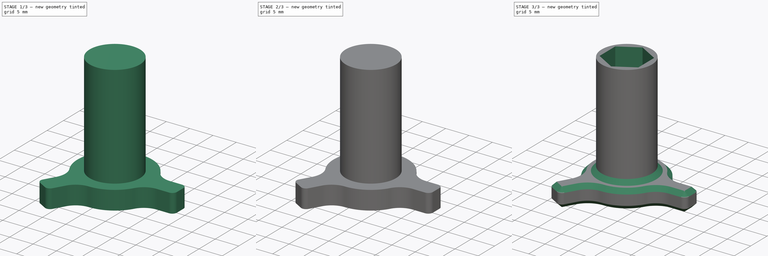
[diagram: build sequence overview — one tinted view per stage of 3, left to right]
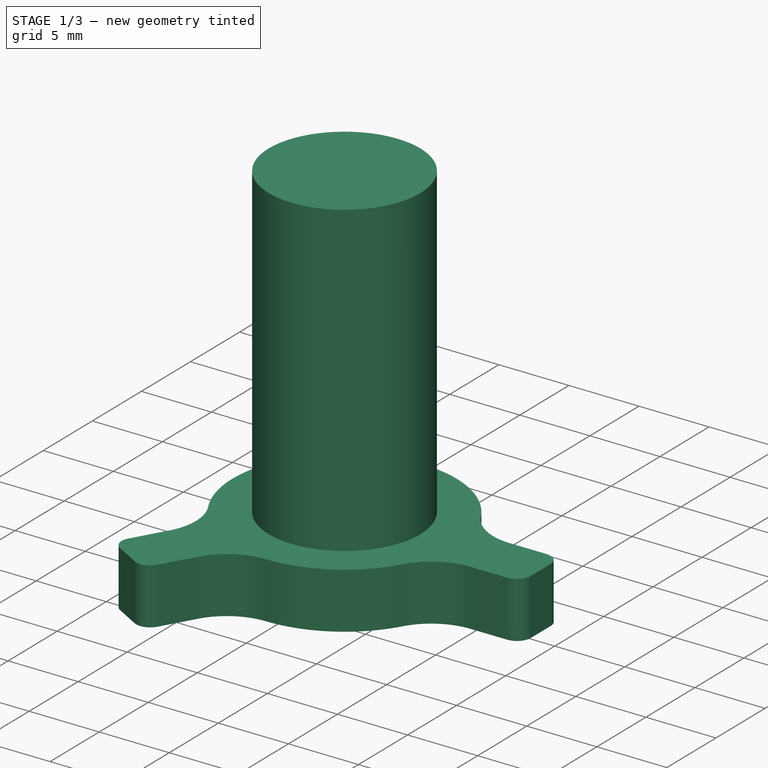
[diagram: stage 1 of 3 — iso view after this stage's code; geometry added in this stage tinted green]
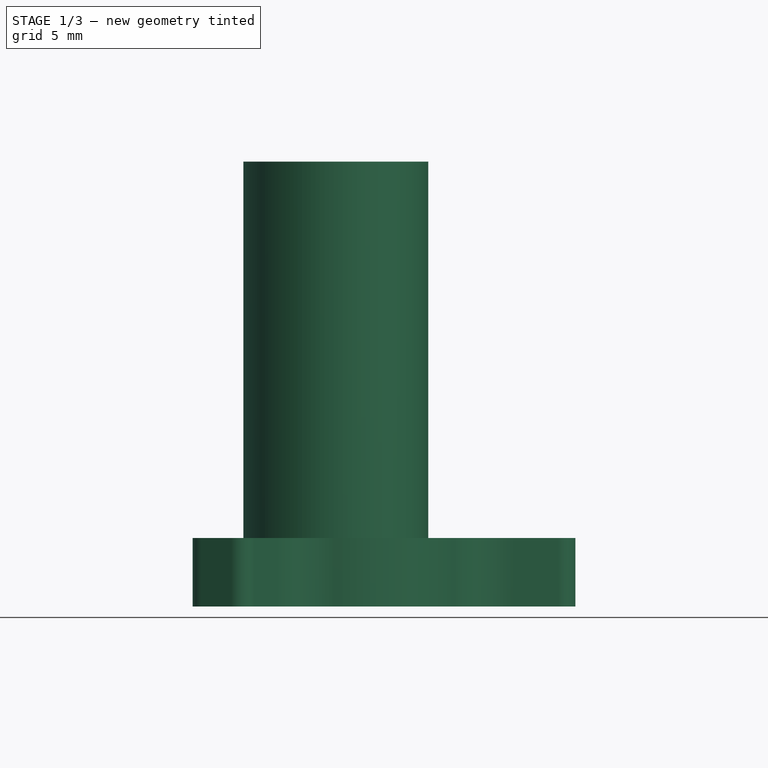
[diagram: stage 1 of 3 — front view after this stage's code; geometry added in this stage tinted green]
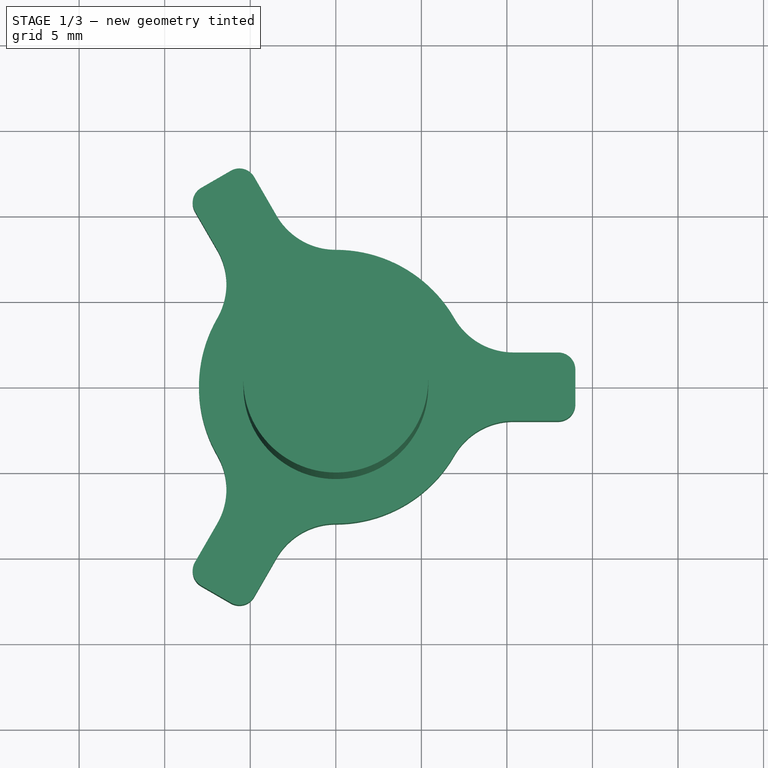
[diagram: stage 1 of 3 — top view after this stage's code; geometry added in this stage tinted green]
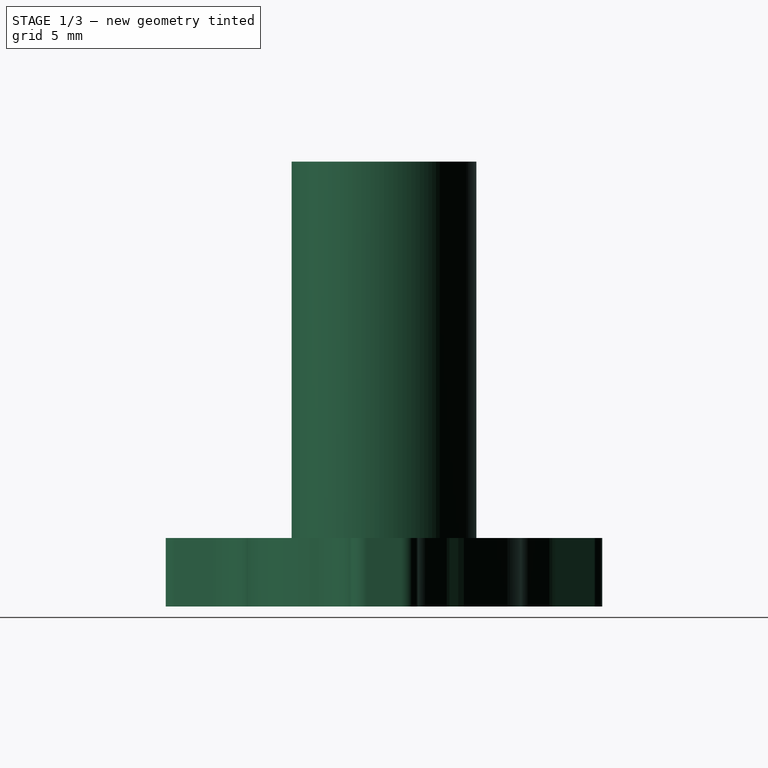
[diagram: stage 1 of 3 — right view after this stage's code; geometry added in this stage tinted green]
FCSTD DOCUMENT  (FreeCAD 0.19R24267 (Git))
Label: festo key 4plus
License: All rights reserved
LicenseURL: http://en.wikipedia.org/wiki/All_rights_reserved
objects: Sketcher::SketchObject×5, PartDesign::Pocket×3, PartDesign::Pad×2, PartDesign::Chamfer×2, PartDesign::PolarPattern×1, PartDesign::Body×1
note: 21 computed .brp shape members not serialized (recipe doc carries the construction recipe); baked Part::Feature solids carry a one-line shape summary decoded from their .brp

FEATURE [Sketcher::SketchObject] Sketch  label="handle"
  FullyConstrained = true
  MapMode = 5
  Support = -> [XY_Plane]
  sketch-geometry (8):
    g0: LineSegment StartX=14 StartY=1 StartZ=0 EndX=14 EndY=-1 EndZ=0
    g1: ArcOfCircle CenterX=13 CenterY=1 CenterZ=0 NormalX=0 NormalY=0 NormalZ=1 AngleXU=0 Radius=1 StartAngle=0 EndAngle=1.5708
    g2: ArcOfCircle CenterX=13 CenterY=-1 CenterZ=0 NormalX=0 NormalY=0 NormalZ=1 AngleXU=0 Radius=1 StartAngle=4.71239 EndAngle=6.28319
    g3: LineSegment StartX=13 StartY=2 StartZ=0 EndX=10.3923 EndY=2 EndZ=0
    g4: LineSegment StartX=13 StartY=-2 StartZ=0 EndX=10.3923 EndY=-2 EndZ=0
    g5: ArcOfCircle CenterX=10.3923 CenterY=6 CenterZ=0 NormalX=0 NormalY=0 NormalZ=1 AngleXU=0 Radius=4 StartAngle=3.66519 EndAngle=4.71239
    g6: ArcOfCircle CenterX=10.3923 CenterY=-6 CenterZ=0 NormalX=0 NormalY=0 NormalZ=1 AngleXU=0 Radius=4 StartAngle=1.5708 EndAngle=2.61799
    g7: ArcOfCircle CenterX=0 CenterY=0 CenterZ=0 NormalX=0 NormalY=0 NormalZ=1 AngleXU=0 Radius=8 StartAngle=0.523599 EndAngle=5.75959
  constraints (22):
    c: DistanceX(g-1,g0) = 14
    c: Symmetric(g0,g0,g-1)
    c: DistanceY(g0,g0) = 2
    c: Coincident(g1,g0)
    c: Coincident(g2,g0)
    c: Horizontal(g2,g0)
    c: Radius(g1) = 1
    c: Horizontal(g3)
    c: Tangent(g3,g1) = -1.5708
    c: Coincident(g4,g2)
    c: Horizontal(g4)
    c: Equal(g3,g4)
    c: Tangent(g5,g3) = 1.5708
    c: Horizontal(g1,g0)
    c: Equal(g2,g1)
    c: Equal(g5,g6)
    c: Coincident(g7,g-1)
    c: Radius(g7) = 8
    c: Tangent(g7,g5) = 1.5708
    c: Tangent(g6,g4) = -1.5708
    c: Tangent(g7,g6) = 1.5708
    c: DistanceY(g6,g7) = 6
FEATURE [PartDesign::Pad] Pad
  Direction = (1,1,1)
  Length = 4
  Length2 = 100
  Profile = -> Sketch
  Refine = true
  Type = 0
FEATURE [Sketcher::SketchObject] Sketch001  label="festo hole"
  FullyConstrained = false
  MapMode = 5
  Support = -> [XY_Plane]
  sketch-geometry (4):
    g0: ArcOfCircle CenterX=-1 CenterY=0 CenterZ=0 NormalX=0 NormalY=0 NormalZ=1 AngleXU=0 Radius=4.2 StartAngle=1.5708 EndAngle=4.71239
    g1: ArcOfCircle CenterX=1 CenterY=0 CenterZ=0 NormalX=0 NormalY=0 NormalZ=1 AngleXU=0 Radius=4.2 StartAngle=4.71239 EndAngle=7.85398
    g2: LineSegment StartX=-1 StartY=-4.2 StartZ=0 EndX=1 EndY=-4.2 EndZ=0
    g3: LineSegment StartX=-1 StartY=4.2 StartZ=0 EndX=1 EndY=4.2 EndZ=0
  constraints (9):
    c: Tangent(g0,g3)
    c: Tangent(g0,g2)
    c: Tangent(g2,g1)
    c: Tangent(g3,g1)
    c: Horizontal(g2)
    c: Equal(g0,g1)
    c: DistanceX(g0,g1) = 2
    c: Radius(g1) = 4.2
    c: Symmetric(g0,g1,g-1)
FEATURE [PartDesign::PolarPattern] PolarPattern
  Angle = 360
  Axis = -> Sketch [N_Axis]
  BaseFeature = -> Pad
  Occurrences = 3
  Originals = -> [Pad]
  Refine = true
FEATURE [Sketcher::SketchObject] Sketch002  label="cylinder"
  AttachmentOffset = pos=(0,0,4) rot=(0,0,1;0rad)
  FullyConstrained = true
  MapMode = 5
  Placement = pos=(0,0,4) rot=(0,0,1;0rad)
  Support = -> [XY_Plane]
  sketch-geometry (1):
    g0: Circle CenterX=0 CenterY=0 CenterZ=0 NormalX=0 NormalY=0 NormalZ=1 AngleXU=0 Radius=5.4
  constraints (2):
    c: Coincident(g0,g-1)
    c: Radius(g0) = 5.4
FEATURE [PartDesign::Pad] Pad001
  BaseFeature = -> PolarPattern
  Direction = (1,1,1)
  Length = 22
  Length2 = 100
  Profile = -> Sketch002
  Refine = true
  Type = 0
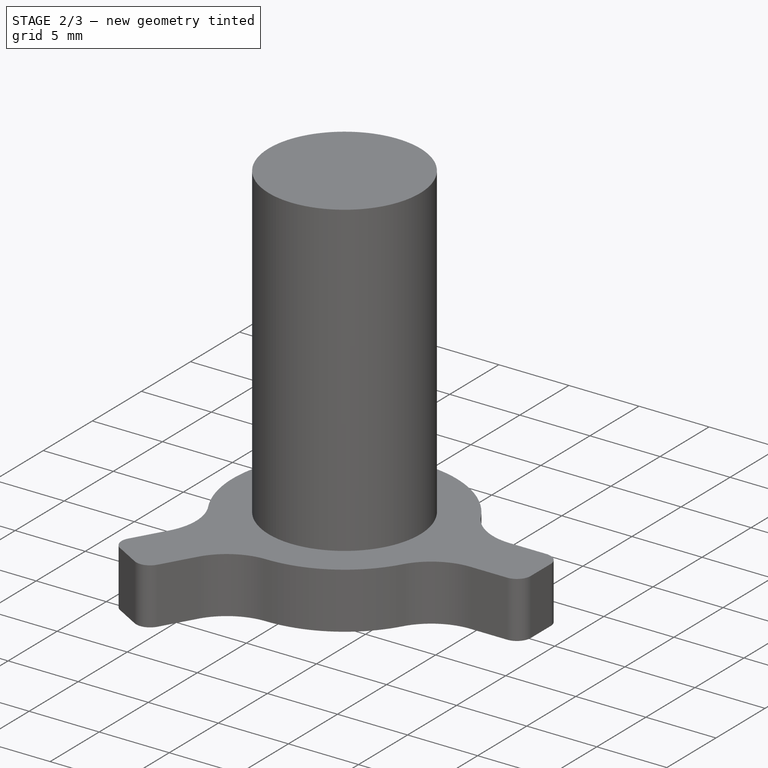
[diagram: stage 2 of 3 — iso view after this stage's code; geometry added in this stage tinted green]
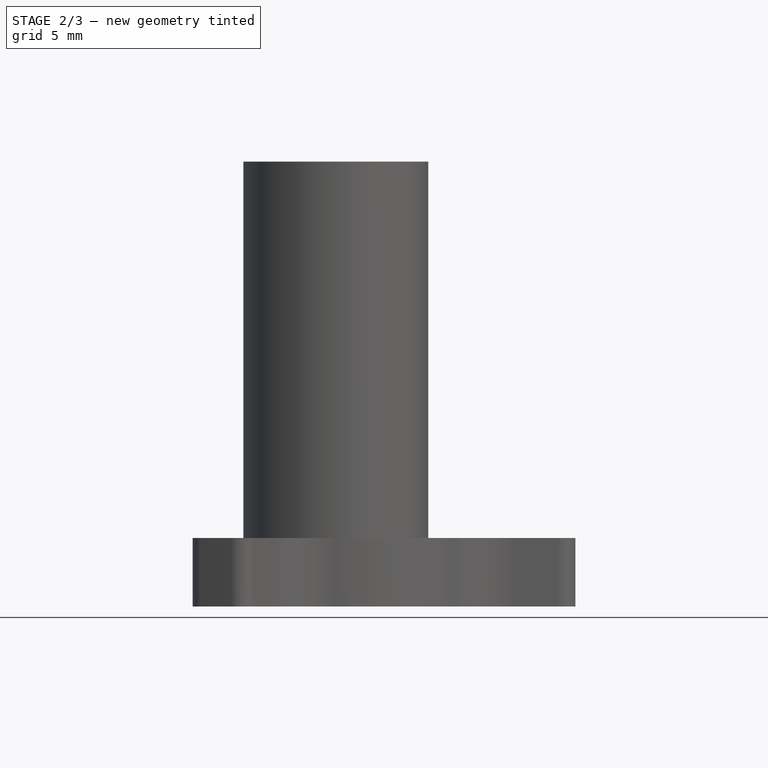
[diagram: stage 2 of 3 — front view after this stage's code; geometry added in this stage tinted green]
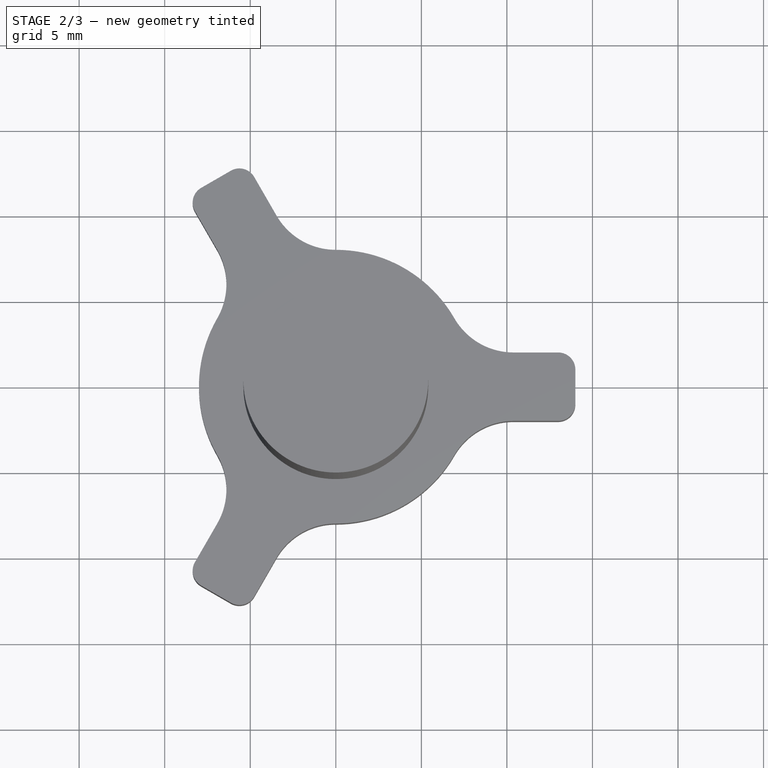
[diagram: stage 2 of 3 — top view after this stage's code; geometry added in this stage tinted green]
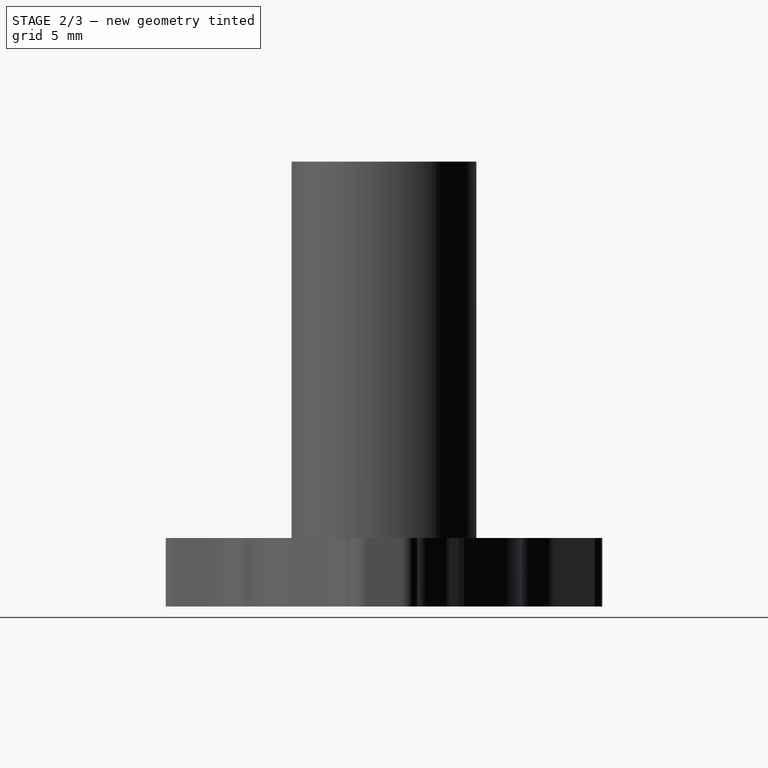
[diagram: stage 2 of 3 — right view after this stage's code; geometry added in this stage tinted green]
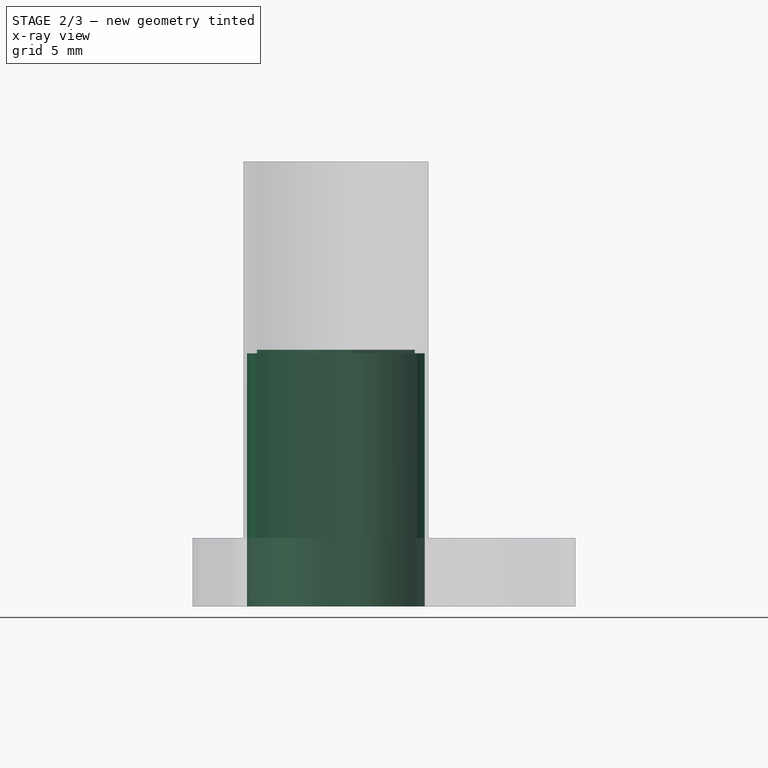
[diagram: stage 2 of 3 — x-ray composite at the front view; earlier geometry ghosted, this stage's added geometry solid]
FEATURE [PartDesign::Pocket] Pocket
  BaseFeature = -> Pad001
  Length = 14.8
  Length2 = 100
  Profile = -> Sketch001
  Refine = true
  Reversed = true
  Type = 0
FEATURE [Sketcher::SketchObject] Sketch004  label="hex hole"
  FullyConstrained = false
  MapMode = 5
  Support = -> [XY_Plane]
  sketch-geometry (7):
    g0: LineSegment StartX=4.15692 StartY=-2.4 StartZ=0 EndX=4.15692 EndY=2.4 EndZ=0
    g1: LineSegment StartX=4.15692 StartY=2.4 StartZ=0 EndX=0 EndY=4.8 EndZ=0
    g2: LineSegment StartX=0 StartY=4.8 StartZ=0 EndX=-4.15692 EndY=2.4 EndZ=0
    g3: LineSegment StartX=-4.15692 StartY=2.4 StartZ=0 EndX=-4.15692 EndY=-2.4 EndZ=0
    g4: LineSegment StartX=-4.15692 StartY=-2.4 StartZ=0 EndX=0 EndY=-4.8 EndZ=0
    g5: LineSegment StartX=0 StartY=-4.8 StartZ=0 EndX=4.15692 EndY=-2.4 EndZ=0
    g6: Circle CenterX=0 CenterY=0 CenterZ=0 NormalX=0 NormalY=0 NormalZ=1 AngleXU=0 Radius=4.8
  constraints (16):
    c: Coincident(g0,g1)
    c: Coincident(g1,g2)
    c: Coincident(g2,g3)
    c: Coincident(g3,g4)
    c: Coincident(g4,g5)
    c: Coincident(g5,g0)
    c: Equal(g0, g1-g5) x5
    c: PointOnObject(g0,g6)
    c: PointOnObject(g1,g6)
    c: PointOnObject(g2,g6)
    c: PointOnObject(g3,g6)
    c: PointOnObject(g4,g6)
    c: PointOnObject(g5,g6)
    c: Coincident(g6,g-1)
    c: Vertical(g0)
    c: Radius(g6) = 4.8
FEATURE [Sketcher::SketchObject] Sketch005  label="hex hole support"
  AttachmentOffset = pos=(0,0,15) rot=(0,0,1;0rad)
  ExternalGeometry = -> [Pocket,Sketch004]
  FullyConstrained = true
  MapMode = 5
  Placement = pos=(0,0,15) rot=(0,0,1;0rad)
  Support = -> [XY_Plane]
  sketch-geometry (8):
    g0: LineSegment StartX=-1 StartY=4.2 StartZ=0 EndX=-4.61442 EndY=2.13914 EndZ=0
    g1: LineSegment StartX=-1 StartY=-4.2 StartZ=0 EndX=-4.61442 EndY=-2.13914 EndZ=0
    g2: LineSegment StartX=1 StartY=4.2 StartZ=0 EndX=4.61442 EndY=2.13914 EndZ=0
    g3: LineSegment StartX=1 StartY=-4.2 StartZ=0 EndX=4.61442 EndY=-2.13914 EndZ=0
    g4: LineSegment StartX=-1 StartY=4.2 StartZ=0 EndX=1 EndY=4.2 EndZ=0
    g5: LineSegment StartX=4.61442 StartY=2.13914 StartZ=0 EndX=4.61442 EndY=-2.13914 EndZ=0
    g6: LineSegment StartX=-1 StartY=-4.2 StartZ=0 EndX=1 EndY=-4.2 EndZ=0
    g7: LineSegment StartX=-4.61442 StartY=2.13914 StartZ=0 EndX=-4.61442 EndY=-2.13914 EndZ=0
  constraints (20):
    c: Coincident(g0,g-5)
    c: PointOnObject(g0,g-5)
    c: Coincident(g1,g-5)
    c: PointOnObject(g1,g-5)
    c: Coincident(g2,g-3)
    c: PointOnObject(g2,g-3)
    c: Coincident(g3,g-3)
    c: PointOnObject(g3,g-3)
    c: PointOnObject(g-4,g3)
    c: PointOnObject(g-4,g2)
    c: PointOnObject(g-6,g0)
    c: PointOnObject(g-6,g1)
    c: Coincident(g4,g0)
    c: Coincident(g4,g2)
    c: Coincident(g5,g2)
    c: Coincident(g5,g3)
    c: Coincident(g6,g1)
    c: Coincident(g6,g3)
    c: Coincident(g7,g0)
    c: Coincident(g7,g1)
FEATURE [PartDesign::Pocket] Pocket001
  BaseFeature = -> Pocket
  Length = 0.2
  Length2 = 100
  Profile = -> Sketch005
  Refine = true
  Type = 0
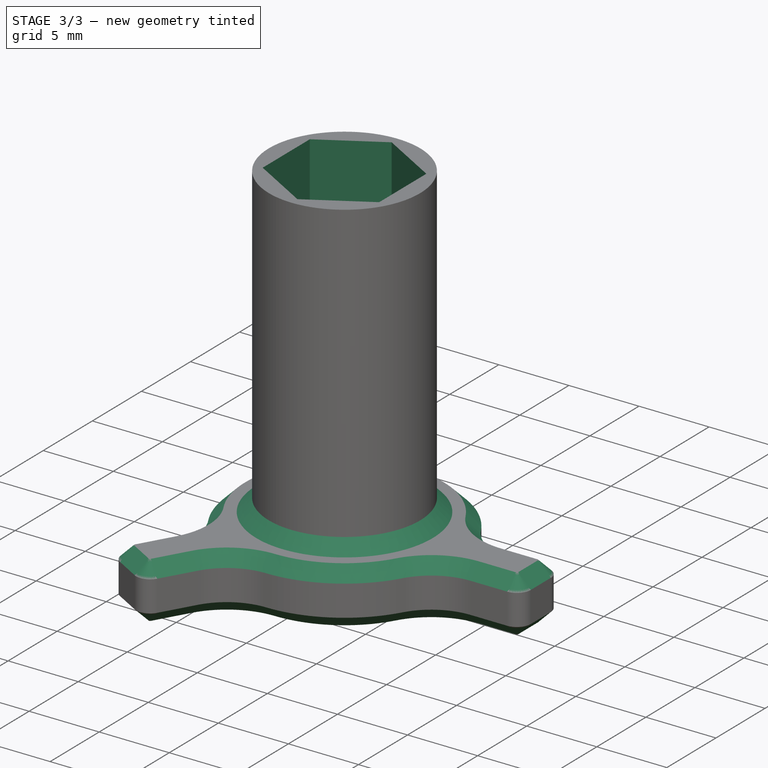
[diagram: stage 3 of 3 — iso view after this stage's code; geometry added in this stage tinted green]
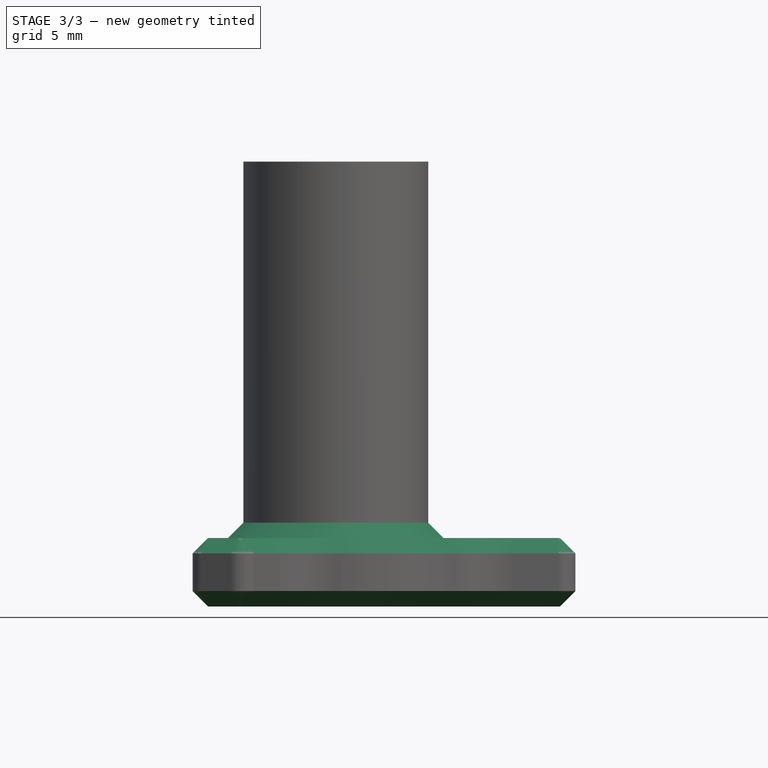
[diagram: stage 3 of 3 — front view after this stage's code; geometry added in this stage tinted green]
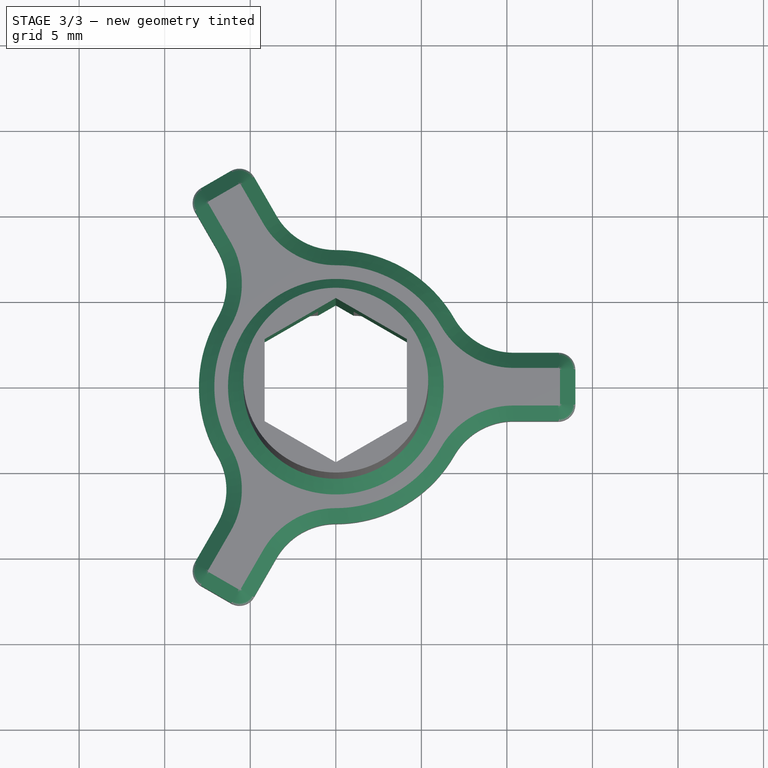
[diagram: stage 3 of 3 — top view after this stage's code; geometry added in this stage tinted green]
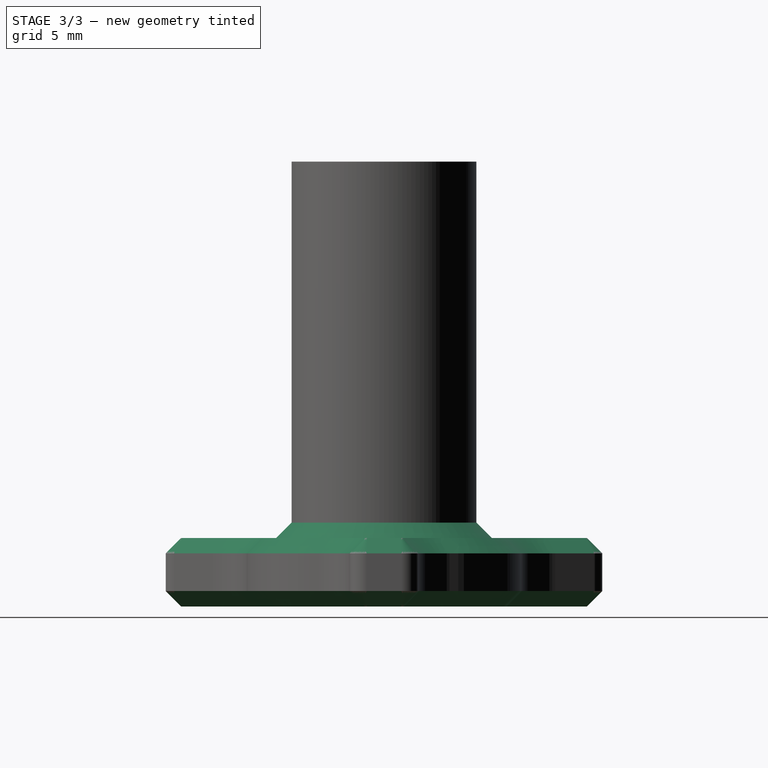
[diagram: stage 3 of 3 — right view after this stage's code; geometry added in this stage tinted green]
FEATURE [PartDesign::Pocket] Pocket002
  BaseFeature = -> Pocket001
  Length = 5
  Length2 = 100
  Profile = -> Sketch004
  Refine = true
  Reversed = true
  Type = 1
FEATURE [PartDesign::Chamfer] Chamfer
  Angle = 45
  Base = -> Pocket002 [Face4]
  BaseFeature = -> Pocket002
  ChamferType = 0
  FlipDirection = false
  Refine = true
  Size = 0.9
  Size2 = 1
  SupportTransform = false
FEATURE [PartDesign::Chamfer] Chamfer001
  Angle = 45
  Base = -> Chamfer [Face4]
  BaseFeature = -> Chamfer
  ChamferType = 0
  FlipDirection = false
  Refine = true
  Size = 0.9
  Size2 = 1
  SupportTransform = false
FEATURE [PartDesign::Body] Body
  Group = -> [Sketch,Pad,Sketch001,PolarPattern,Sketch002,Pad001,Pocket,Sketch004,Sketch005,Pocket001,Pocket002,Chamfer,Chamfer001]
  Origin = -> Origin
  Tip = -> Chamfer001
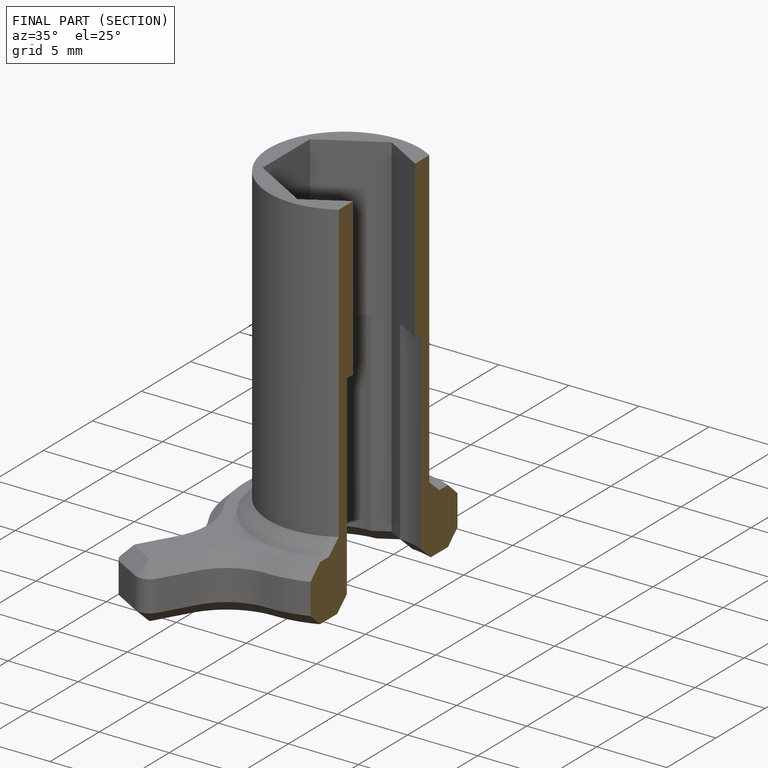
[diagram: finished part — half-section view (interior)]
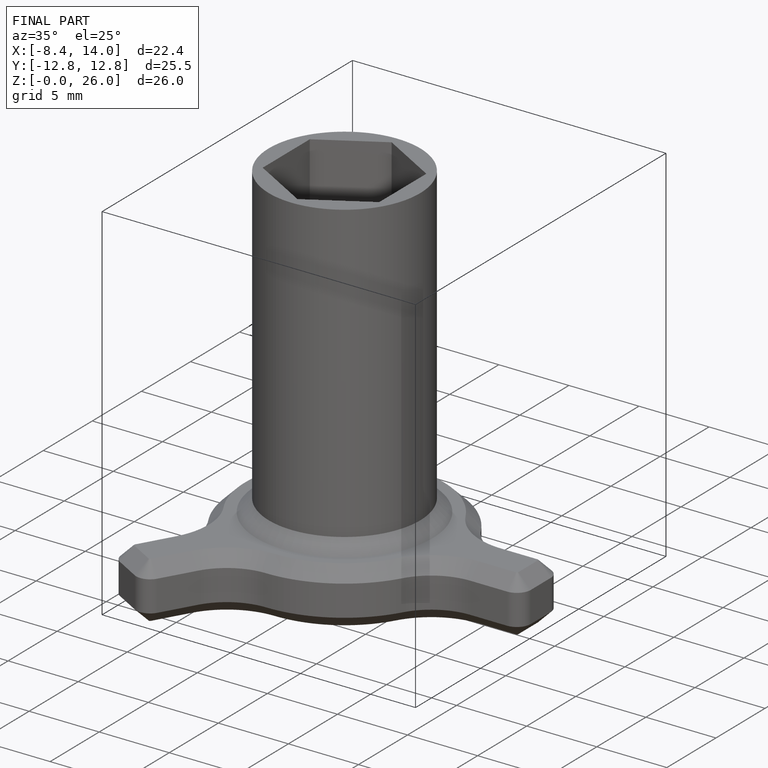
[diagram: finished part — iso view with bounding-box wireframe]
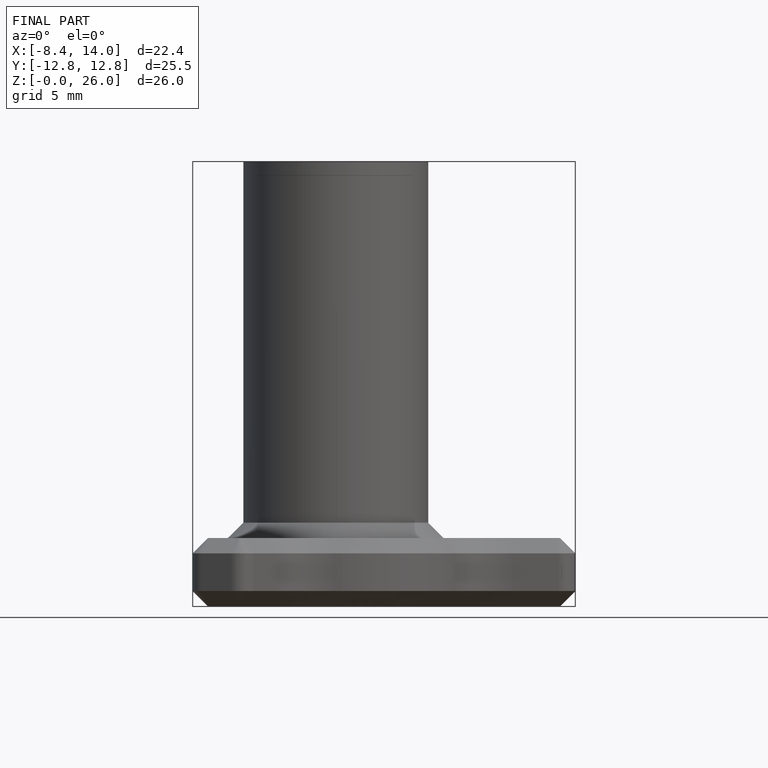
[diagram: finished part — front view with bounding-box wireframe]
